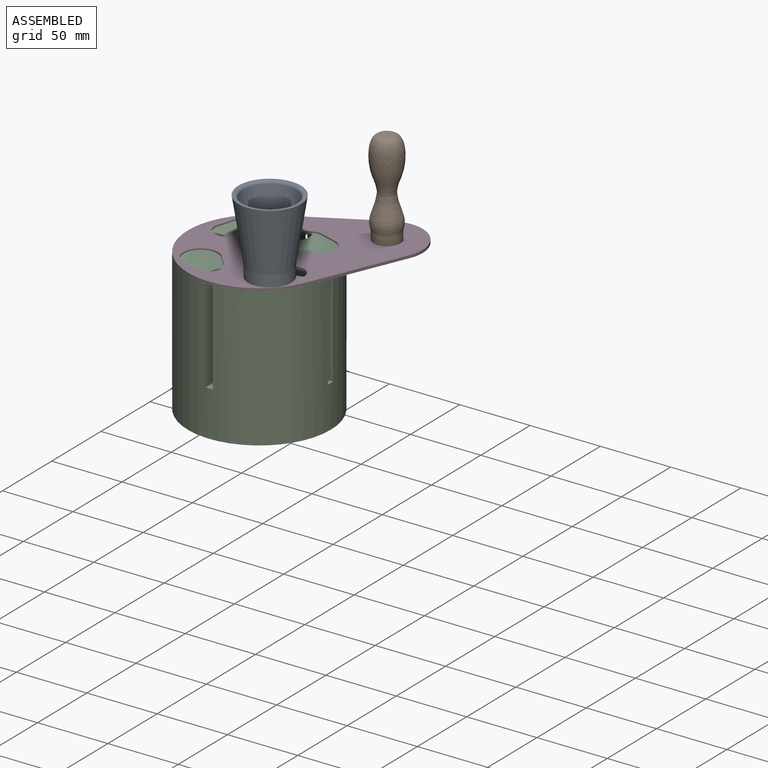
[diagram: assembled view]
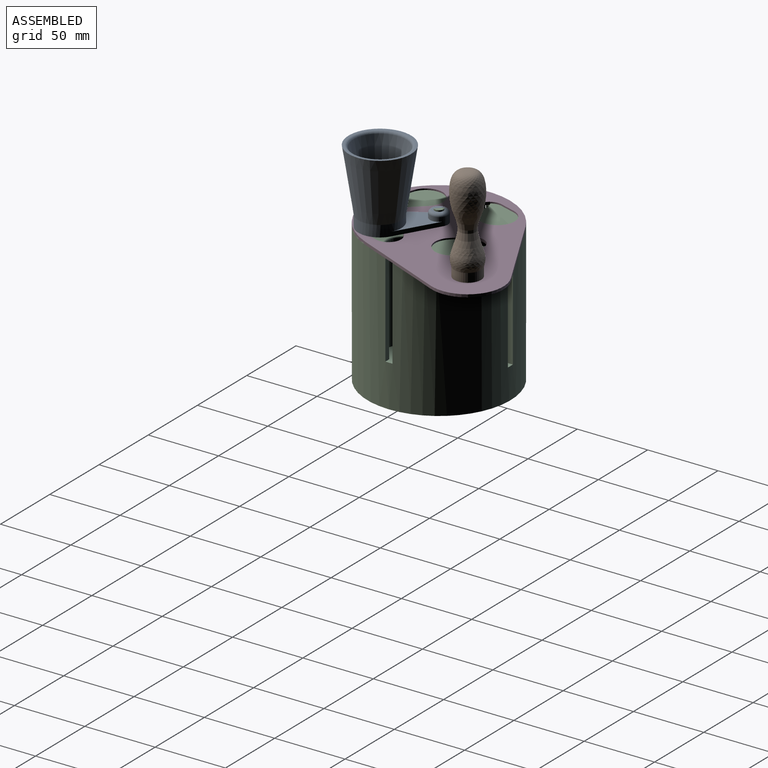
[diagram: assembled view, second angle]
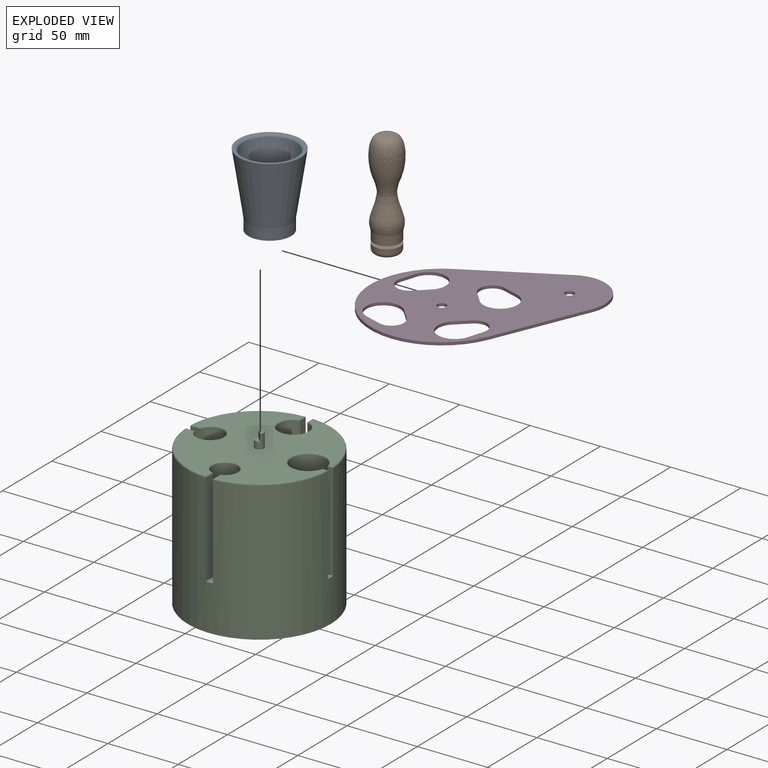
[diagram: exploded view]
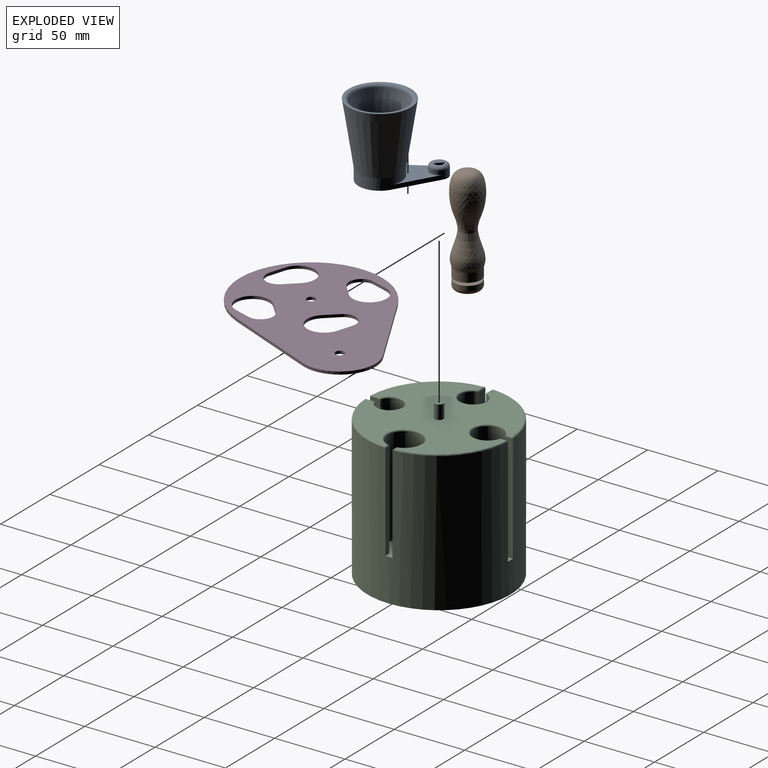
[diagram: exploded view, second angle]
ASSEMBLY  parts=4 mates=6
PART A: 16 faces, bbox 44.9x64.3x52.5 mm
  f0: plane 32.63x8.66mm, normal (-0.97,0.26,0), area 101.3mm2, adj f1,f5,f6,f7
  f1: cylinder r=15.3mm len=30.61mm, axis (0,0,-1), area 648.9mm2, adj f0,f2,f6,f7,f12
  f2: plane 32.63x8.66mm, normal (0.97,0.26,0), area 101.3mm2, adj f1,f5,f6,f7
  f3: cylinder r=3.17mm len=8mm, axis (0,0,-1), area 109.7mm2, adj f7,f8,f9,f10
  f4: cylinder r=12.13mm len=24.26mm, axis (0,0,-1), area 609.7mm2, adj f7,f13
  f5: cylinder r=6.35mm len=12.7mm, axis (0,0,-1), area 169.7mm2, adj f0,f2,f6,f7,f15
  f6: plane 32.63x29.59mm, normal (0,0,1), area 350mm2, adj f0,f1,f2,f5
  f7: plane 56.58x30.61mm, normal (0,0,-1), area 718.7mm2, adj f0,f1,f2,f3,f4,f5
  f8: plane 8.7x8.7mm, normal (0,0,1), area 43.6mm2, adj f3,f10,f15
  f9: plane 6.35x3.18mm, normal (0,0,-1), area 15.8mm2, adj f3,f10
  f10: plane 6.35x5mm, normal (1,0,0), area 31.7mm2, adj f3,f8,f9
  f11: plane 44.45x44.45mm, normal (0,0,1), area 197.5mm2, adj f12,f14
  f12: cone r=22.23mm half-angle=8.8deg, axis (0,0,1), area 5304mm2, adj f1,f11
  f13: cone r=12.13mm half-angle=8.8deg, axis (0,0,1), area 4203mm2, adj f4,f14
  f14: torus R=20.76mm, axis (0,0,1), area 348.3mm2, adj f11,f13
  f15: torus R=4.35mm, axis (0,0,1), area 111mm2, adj f5,f8
PART B: 8 faces, bbox 21.7x21.7x76.2 mm
  f0: plane 12.7x12.7mm, normal (0,0,-1), area 126.7mm2, adj f1
  f1: torus R=6.35mm, axis (0,0,-1), area 262.3mm2, adj f0,f2
  f2: cylinder r=9.53mm len=19.05mm, axis (0,0,-1), area 190mm2, adj f1,f3
  f3: plane 19.05x19.05mm, normal (0,0,1), area 253.4mm2, adj f2,f4
  f4: cylinder r=3.17mm len=6.35mm, axis (0,0,-1), area 39.9mm2, adj f3,f5
  f5: plane 19.05x19.05mm, normal (0,0,-1), area 253.4mm2, adj f4,f6
  f6: cylinder r=9.53mm len=19.05mm, axis (0,0,-1), area 380mm2, adj f5,f7
  f7: revolved ~61.5x21.68mm, area 3644.6mm2, adj f6
PART C: 58 faces, bbox 109.8x109.8x110 mm
  f0: plane 5.42x5.42mm, normal (0,0,1), area 15.8mm2, adj f20,f21
  f1: cylinder r=50.8mm len=101.6mm, axis (0,0,-1), area 30138.3mm2, adj f3,f5,f6,f7,f8,f9,f10,f13
  f2: plane 99.35x99.35mm, normal (0,0,1), area 6030.2mm2, adj f20,f23,f24,f25,f26,f27,f28,f29
  f3: plane 101.6x101.6mm, normal (0,0,-1), area 8107.3mm2, adj f1
  f4: cylinder r=12.13mm len=69mm, axis (0,0,1), area 4905.7mm2, adj f5,f6,f7,f35
  f5: plane 69x3.95mm, normal (0,1,0), area 272.6mm2, adj f1,f4,f7,f37
  f6: plane 69x3.95mm, normal (0,-1,0), area 272.6mm2, adj f1,f4,f7,f33
  f7: plane 28.01x24.26mm, normal (0,0,1), area 481.6mm2, adj f1,f4,f5,f6
  f8: plane 26.48x21.21mm, normal (0,0,1), area 380.5mm2, adj f1,f9,f10,f11
  f9: plane 77x5.52mm, normal (-1,0,0), area 424.7mm2, adj f1,f8,f11,f29
  f10: plane 77x5.52mm, normal (1,0,0), area 424.7mm2, adj f1,f8,f11,f25
  f11: cylinder r=10.61mm len=77mm, axis (0,0,1), area 4735.8mm2, adj f8,f9,f10,f27
  f12: cylinder r=9.53mm len=75mm, axis (0,0,1), area 4102.9mm2, adj f13,f14,f15,f26
  f13: plane 75x6.63mm, normal (0,-1,0), area 497.4mm2, adj f1,f12,f15,f24
  f14: plane 75x6.63mm, normal (0,1,0), area 497.4mm2, adj f1,f12,f15,f28
  f15: plane 25.4x19.05mm, normal (0,0,1), area 317.8mm2, adj f1,f12,f13,f14
  f16: cylinder r=8.96mm len=66.5mm, axis (0,0,1), area 3399.2mm2, adj f17,f18,f19,f34
  f17: plane 66.5x7.22mm, normal (1,0,0), area 480.4mm2, adj f1,f16,f19,f32
  f18: plane 66.5x7.22mm, normal (-1,0,0), area 480.4mm2, adj f1,f16,f19,f36
  f19: plane 24.83x17.91mm, normal (0,0,1), area 287.6mm2, adj f1,f16,f17,f18
  f20: cylinder r=3.17mm len=10mm, axis (0,0,-1), area 149.6mm2, adj f0,f2,f21,f22
  f21: plane 5x4.49mm, normal (-0.71,-0.71,0), area 31.7mm2, adj f0,f20,f22
  f22: plane 5.42x5.42mm, normal (0,0,1), area 15.8mm2, adj f20,f21
  f23: torus R=49.8mm, axis (0,0,1), area 115.3mm2, adj f1,f2,f24,f25
  f24: cylinder r=1mm len=6.63mm, axis (1,0,0), area 9.4mm2, adj f2,f13,f23,f26
  f25: cylinder r=1mm len=5.52mm, axis (0,1,0), area 7.6mm2, adj f2,f10,f23,f27
  f26: torus R=10.53mm, axis (0,0,1), area 88.3mm2, adj f2,f12,f24,f28
  f27: torus R=11.61mm, axis (0,0,1), area 99mm2, adj f2,f11,f25,f29
  f28: cylinder r=1mm len=6.63mm, axis (-1,0,0), area 9.4mm2, adj f2,f14,f26,f30
  f29: cylinder r=1mm len=5.52mm, axis (0,-1,0), area 7.6mm2, adj f2,f9,f27,f31
  f30: torus R=49.8mm, axis (0,0,1), area 115.3mm2, adj f1,f2,f28,f32
  f31: torus R=49.8mm, axis (0,0,1), area 115.3mm2, adj f1,f2,f29,f33
  f32: cylinder r=1mm len=7.22mm, axis (0,1,0), area 10.3mm2, adj f2,f17,f30,f34
  f33: cylinder r=1mm len=3.95mm, axis (1,0,0), area 5.1mm2, adj f2,f6,f31,f35
  f34: torus R=9.96mm, axis (0,0,1), area 82.7mm2, adj f2,f16,f32,f36
  f35: torus R=13.13mm, axis (0,0,1), area 114.1mm2, adj f2,f4,f33,f37
  f36: cylinder r=1mm len=7.22mm, axis (0,-1,0), area 10.3mm2, adj f2,f18,f34,f38
  f37: cylinder r=1mm len=3.95mm, axis (-1,0,0), area 5.1mm2, adj f2,f5,f35,f38
  f38: torus R=49.8mm, axis (0,0,1), area 115.3mm2, adj f1,f2,f36,f37
  f39: cylinder r=48.26mm len=96.52mm, axis (0,0,-1), area 25520.4mm2, adj f40,f41,f42,f43,f44,f45,f46,f49
  f40: plane 95.98x95.72mm, normal (0,0,-1), area 5195.4mm2, adj f39,f42,f45,f46,f47,f48,f49,f50
  f41: plane 96.52x96.52mm, normal (0,0,1), area 7316.9mm2, adj f39
  f42: cylinder r=14.67mm len=70mm, axis (0,0,1), area 5403.8mm2, adj f39,f40,f43
  f43: plane 29.34x28.01mm, normal (0,0,-1), area 663.1mm2, adj f39,f42
  f44: plane 26.48x26.29mm, normal (0,0,-1), area 547.3mm2, adj f39,f45,f46,f47
  f45: plane 78x0.94mm, normal (1,0,0), area 73.6mm2, adj f39,f40,f44,f47
  f46: plane 78x0.94mm, normal (-1,0,0), area 73.6mm2, adj f39,f40,f44,f47
  f47: cylinder r=13.14mm len=78mm, axis (0,0,1), area 5628.5mm2, adj f40,f44,f45,f46
  f48: cylinder r=12.06mm len=76mm, axis (0,0,1), area 4964.3mm2, adj f40,f49,f50,f51
  f49: plane 76x2.12mm, normal (0,1,0), area 161.4mm2, adj f39,f40,f48,f51
  f50: plane 76x2.12mm, normal (0,-1,0), area 161.4mm2, adj f39,f40,f48,f51
  f51: plane 25.4x24.13mm, normal (0,0,-1), area 473mm2, adj f39,f48,f49,f50
  f52: cylinder r=11.49mm len=67.5mm, axis (0,0,1), area 4164.9mm2, adj f40,f53,f54,f55
  f53: plane 67.5x2.76mm, normal (-1,0,0), area 186mm2, adj f39,f40,f52,f55
  f54: plane 67.5x2.76mm, normal (1,0,0), area 186mm2, adj f39,f40,f52,f55
  f55: plane 24.83x22.99mm, normal (0,0,-1), area 436.8mm2, adj f39,f52,f53,f54
  f56: cylinder r=0.64mm len=5mm, axis (0,0,-1), area 19.9mm2, adj f40,f57
  f57: plane 1.27x1.27mm, normal (0,0,-1), area 1.3mm2, adj f56
PART D: 24 faces, bbox 152.4x101.6x2 mm
  f0: cylinder r=25.4mm len=47.89mm, axis (0,0,-1), area 125.1mm2, adj f1,f5,f6,f7
  f1: plane 67.73x23.95mm, normal (-0.33,-0.94,0), area 143.7mm2, adj f0,f2,f6,f7
  f2: cylinder r=50.8mm len=101.6mm, axis (0,0,-1), area 388.2mm2, adj f1,f5,f6,f7
  f3: cylinder r=3.17mm len=6.35mm, axis (0,0,-1), area 39.9mm2, adj f6,f7
  f4: cylinder r=3.17mm len=6.35mm, axis (0,0,-1), area 39.9mm2, adj f6,f7
  f5: plane 67.73x23.95mm, normal (-0.33,0.94,0), area 143.7mm2, adj f0,f2,f6,f7
  f6: plane 152.4x101.6mm, normal (0,0,1), area 8649.2mm2, adj f0,f1,f2,f3,f4,f5,f8,f9
  f7: plane 152.4x101.6mm, normal (0,0,-1), area 8649.2mm2, adj f0,f1,f2,f3,f4,f5,f8,f9
  f8: cylinder r=8.96mm len=17.02mm, axis (0,0,1), area 46.8mm2, adj f6,f7,f9,f11
  f9: plane 11.66x2mm, normal (-1,0.09,0), area 23.4mm2, adj f6,f7,f8,f10
  f10: cylinder r=12.13mm len=24.26mm, axis (0,0,1), area 89.1mm2, adj f6,f7,f9,f11
  f11: plane 10.6x4.98mm, normal (0.91,0.43,0), area 23.4mm2, adj f6,f7,f8,f10
  f12: cylinder r=8.96mm len=17.02mm, axis (0,0,1), area 46.8mm2, adj f6,f7,f13,f15
  f13: plane 11.66x2mm, normal (-0.09,-1,0), area 23.4mm2, adj f6,f7,f12,f14
  f14: cylinder r=12.13mm len=24.26mm, axis (0,0,1), area 89.1mm2, adj f6,f7,f13,f15
  f15: plane 10.6x4.98mm, normal (-0.43,0.91,0), area 23.4mm2, adj f6,f7,f12,f14
  f16: cylinder r=8.96mm len=17.02mm, axis (0,0,1), area 46.8mm2, adj f6,f7,f17,f19
  f17: plane 11.66x2mm, normal (1,-0.09,0), area 23.4mm2, adj f6,f7,f16,f18
  f18: cylinder r=12.13mm len=24.26mm, axis (0,0,1), area 89.1mm2, adj f6,f7,f17,f19
  f19: plane 10.6x4.98mm, normal (-0.91,-0.43,0), area 23.4mm2, adj f6,f7,f16,f18
  f20: cylinder r=8.96mm len=17.02mm, axis (0,0,1), area 46.8mm2, adj f6,f7,f21,f23
  f21: plane 11.66x2mm, normal (0.09,1,0), area 23.4mm2, adj f6,f7,f20,f22
  f22: cylinder r=12.13mm len=24.26mm, axis (0,0,1), area 89.1mm2, adj f6,f7,f21,f23
  f23: plane 10.6x4.98mm, normal (0.43,-0.91,0), area 23.4mm2, adj f6,f7,f20,f22
PLACE A rot(axis=(0,0,1),45deg) t=(-34.3,2.72,101)mm
PLACE B rot(axis=(0,0,-1),67.2deg) t=(17.02,59.05,92.65)mm
PLACE C t=(-34.3,2.72,0)mm fixed
PLACE D rot(axis=(0,0,-1),132.3deg) t=(-34.3,2.72,99)mm
MATE cylindrical D.f3 <-> C.f20  axis (0,0,1) through (-34.3,2.72,101)mm
MATE planar A.f10 <-> C.f21  axis (0.71,0.71,0) through (-34.3,2.72,106.5)mm
MATE revolute B.f1 <-> D.f4  axis (0,0,-1) through (17.02,59.05,100)mm
MATE planar B.f1 <-> D.f7  axis (0,0,1) through (17.02,59.05,99)mm
MATE revolute A.f3 <-> C.f20  axis (0,0,-1) through (-34.3,2.72,105)mm
MATE planar A.f7 <-> D.f6  axis (0,0,-1) through (-20.1,-11.47,101)mm
